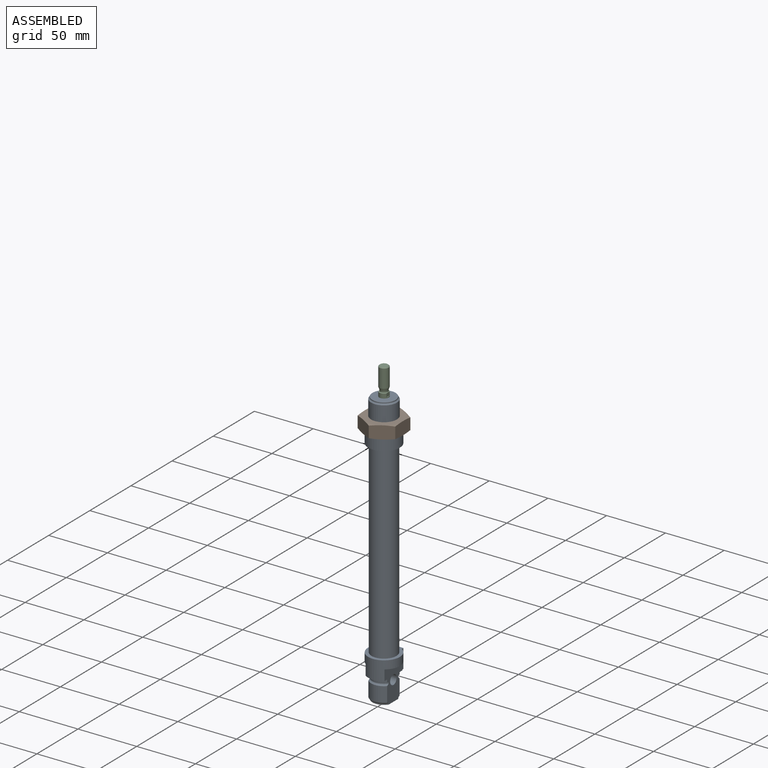
[diagram: assembled view]
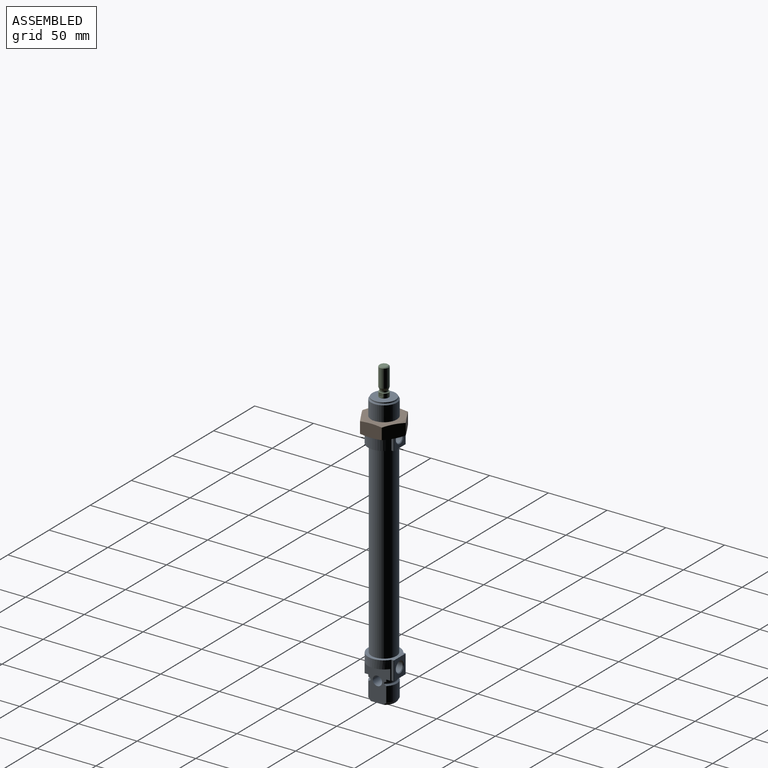
[diagram: assembled view, second angle]
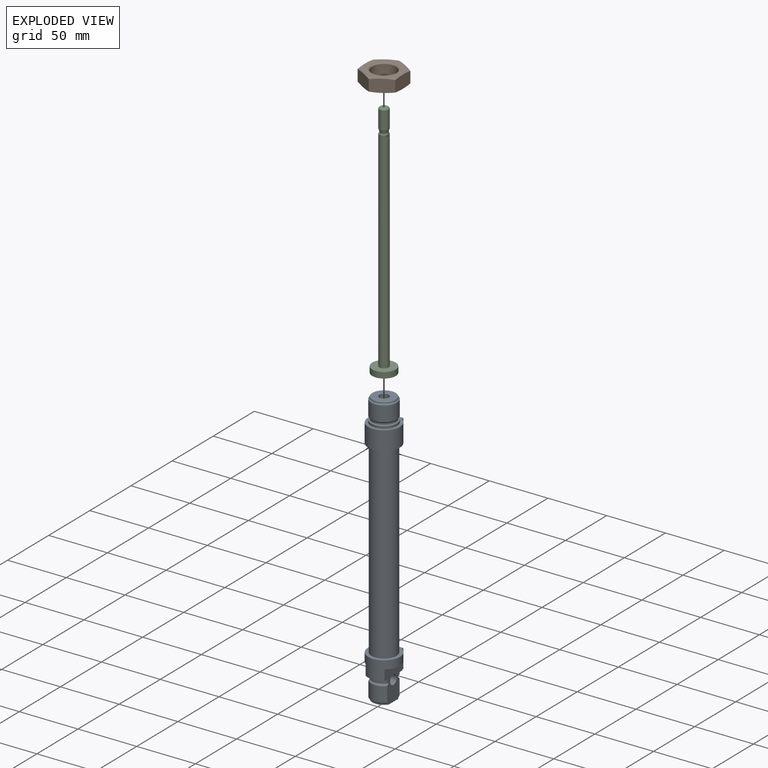
[diagram: exploded view]
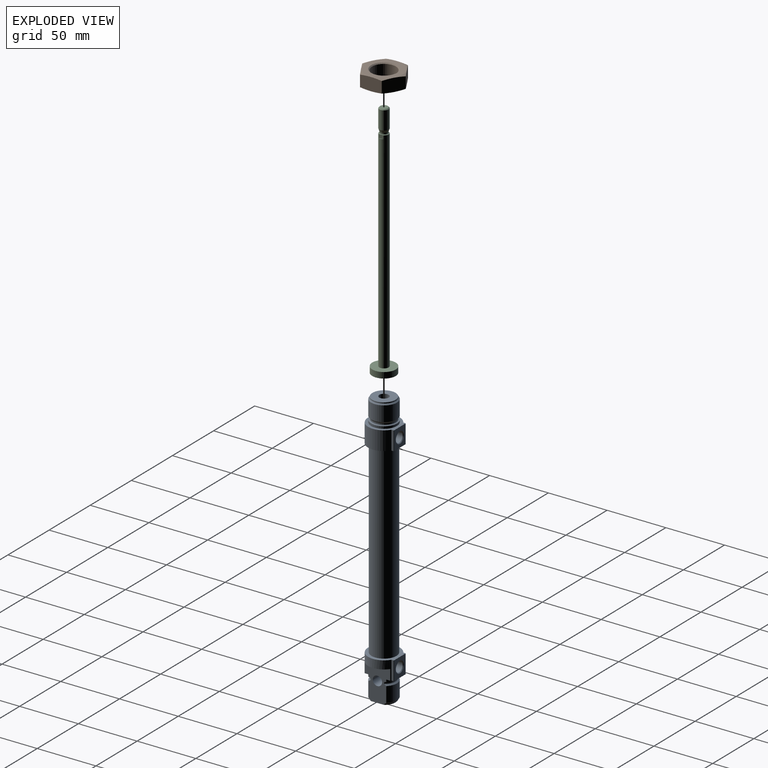
[diagram: exploded view, second angle]
ASSEMBLY  parts=3 mates=2
PART A: 70 faces, bbox 233.3x27.3x27.3 mm
  f0: plane 29.29x22.04mm, normal (0,0,1), area 434.4mm2, adj f1,f2,f3,f4,f5,f6,f9,f21
  f1: torus R=10.65mm, axis (1,0,0), area 11.6mm2, adj f0,f11,f62,f65
  f2: torus R=10.65mm, axis (1,0,0), area 22.9mm2, adj f0,f11,f59,f62
  f3: cone r=11mm half-angle=45deg, axis (-1,0,0), area 25.8mm2, adj f0,f4,f11,f66
  f4: cylinder r=11mm len=16mm, axis (-1,0,0), area 232mm2, adj f0,f3,f11,f65
  f5: cylinder r=11mm len=16mm, axis (-1,0,0), area 232mm2, adj f0,f6,f11,f68
  f6: cone r=10.08mm half-angle=45deg, axis (1,0,0), area 23.6mm2, adj f0,f5,f11,f64
  f7: plane 3.06x0.28mm, normal (0,1,0), area 0.6mm2, adj f12,f58
  f8: plane 3.06x0.28mm, normal (0,1,0), area 0.6mm2, adj f12,f58
  f9: cylinder r=4mm len=16mm, axis (0,0,1), area 402.1mm2, adj f0,f11
  f10: cone r=4.28mm half-angle=45deg, axis (0,1,0), area 23.6mm2, adj f45,f58
  f11: plane 29.29x22.04mm, normal (0,0,-1), area 434.4mm2, adj f1,f2,f3,f4,f5,f6,f9,f21
  f12: cylinder r=4mm len=50.3mm, axis (-1,0,0), area 1186.9mm2, adj f7,f8,f18,f19,f58
  f13: cone r=4.28mm half-angle=45deg, axis (0,1,0), area 23.6mm2, adj f14,f34
  f14: cylinder r=4.28mm len=15.42mm, axis (0,-1,0), area 414.9mm2, adj f13,f15
  f15: cone r=866.03mm half-angle=60deg, axis (0,1,0), area 66.5mm2, adj f14
  f16: plane 20x20mm, normal (-1,0,0), area 314.2mm2, adj f17
  f17: cylinder r=10mm len=130mm, axis (-1,0,0), area 8168.1mm2, adj f16,f18
  f18: plane 20x20mm, normal (1,0,0), area 263.9mm2, adj f12,f17
  f19: plane 19.6x19.6mm, normal (-1,0,0), area 251.5mm2, adj f12,f20
  f20: cone r=9.8mm half-angle=45deg, axis (1,0,0), area 17.6mm2, adj f19,f57
  f21: plane 19.6x16mm, normal (1,0,0), area 274mm2, adj f0,f11,f22,f69
  f22: cone r=10mm half-angle=45deg, axis (-1,0,0), area 5.3mm2, adj f0,f11,f21,f67
  f23: plane 21.75x5.5mm, normal (1,0,0), area 83.7mm2, adj f11,f30
  f24: plane 21.75x5.5mm, normal (1,0,0), area 83.7mm2, adj f0,f30
  f25: cylinder r=11mm len=16mm, axis (-1,0,0), area 35.8mm2, adj f0,f11,f28,f59
  f26: cylinder r=11mm len=16mm, axis (-1,0,0), area 35.8mm2, adj f0,f11,f27,f60
  f27: plane 16x5.95mm, normal (1,0,0), area 53.5mm2, adj f0,f11,f26,f30,f31,f32,f33,f34
  f28: plane 16x5.95mm, normal (1,0,0), area 43.7mm2, adj f0,f11,f25,f30
  f29: plane 27x27mm, normal (-1,0,0), area 226mm2, adj f30,f31,f32,f33,f34,f35,f36,f37
  f30: cylinder r=13.5mm len=27mm, axis (1,0,0), area 651.9mm2, adj f0,f11,f23,f24,f27,f28,f29,f31
  f31: cylinder r=0.3mm len=16mm, axis (1,0,0), area 4.8mm2, adj f27,f29,f30,f32
  f32: plane 16x1.55mm, normal (0,0,-1), area 24.8mm2, adj f27,f29,f31,f33
  f33: cylinder r=0.4mm len=16mm, axis (1,0,0), area 10.1mm2, adj f27,f29,f32,f34
  f34: plane 16x13.7mm, normal (0,1,0), area 144.9mm2, adj f13,f27,f29,f33,f35
  f35: cylinder r=0.4mm len=16mm, axis (1,0,0), area 10.1mm2, adj f27,f29,f34,f36
  f36: plane 16x1.55mm, normal (0,0,1), area 24.8mm2, adj f27,f29,f35,f37
  f37: cylinder r=0.3mm len=16mm, axis (1,0,0), area 4.8mm2, adj f27,f29,f30,f36
  f38: cylinder r=10.65mm len=161mm, axis (-1,0,0), area 10773.5mm2, adj f29,f39
  f39: plane 27x27mm, normal (1,0,0), area 226mm2, adj f38,f41,f42,f43,f44,f45,f46,f47
  f40: plane 27x27mm, normal (-1,0,0), area 202.2mm2, adj f41,f42,f43,f44,f45,f46,f47,f48
  f41: cylinder r=13.5mm len=27mm, axis (1,0,0), area 1107.1mm2, adj f39,f40,f42,f48
  f42: cylinder r=0.3mm len=16mm, axis (1,0,0), area 4.8mm2, adj f39,f40,f41,f43
  f43: plane 16x1.55mm, normal (0,0,-1), area 24.8mm2, adj f39,f40,f42,f44
  f44: cylinder r=0.4mm len=16mm, axis (1,0,0), area 10.1mm2, adj f39,f40,f43,f45
  f45: plane 16x13.7mm, normal (0,1,0), area 144.9mm2, adj f10,f39,f40,f44,f46
  f46: cylinder r=0.4mm len=16mm, axis (1,0,0), area 10.1mm2, adj f39,f40,f45,f47
  f47: plane 16x1.55mm, normal (0,0,1), area 24.8mm2, adj f39,f40,f46,f48
  f48: cylinder r=0.3mm len=16mm, axis (1,0,0), area 4.8mm2, adj f39,f40,f41,f47
  f49: cylinder r=11mm len=22mm, axis (-1,0,0), area 138.2mm2, adj f40,f50
  f50: plane 22x22mm, normal (-1,0,0), area 23.8mm2, adj f49,f51
  f51: torus R=10.65mm, axis (1,0,0), area 80.1mm2, adj f50,f52
  f52: cylinder r=9.85mm len=19.7mm, axis (-1,0,0), area 47.6mm2, adj f51,f53
  f53: torus R=10.65mm, axis (1,0,0), area 39.2mm2, adj f52,f54
  f54: cone r=11mm half-angle=45deg, axis (-1,0,0), area 85.8mm2, adj f53,f55
  f55: cylinder r=11mm len=22mm, axis (-1,0,0), area 895mm2, adj f54,f56
  f56: cone r=10mm half-angle=45deg, axis (1,0,0), area 93.3mm2, adj f55,f57
  f57: cylinder r=10mm len=20mm, axis (-1,0,0), area 50.3mm2, adj f20,f56
  f58: cylinder r=4.28mm len=12.92mm, axis (0,-1,0), area 288mm2, adj f7,f8,f10,f12
  f59: plane 16x3.97mm, normal (1,0,0), area 6.3mm2, adj f0,f2,f11,f25
  f60: plane 16x3.97mm, normal (1,0,0), area 6.3mm2, adj f0,f11,f26,f63
  f61: cylinder r=9.85mm len=16mm, axis (-1,0,0), area 14.4mm2, adj f0,f11,f63,f64
  f62: cylinder r=9.85mm len=16mm, axis (-1,0,0), area 14.4mm2, adj f0,f1,f2,f11
  f63: torus R=10.65mm, axis (1,0,0), area 22.9mm2, adj f0,f11,f60,f61
  f64: torus R=10.65mm, axis (1,0,0), area 11.6mm2, adj f0,f6,f11,f61
  f65: cone r=10.08mm half-angle=45deg, axis (1,0,0), area 23.6mm2, adj f0,f1,f4,f11
  f66: cylinder r=10mm len=16mm, axis (-1,0,0), area 14.8mm2, adj f0,f3,f11,f69
  f67: cylinder r=10mm len=16mm, axis (-1,0,0), area 14.8mm2, adj f0,f11,f22,f68
  f68: cone r=11mm half-angle=45deg, axis (-1,0,0), area 25.8mm2, adj f0,f5,f11,f67
  f69: cone r=10mm half-angle=45deg, axis (-1,0,0), area 5.3mm2, adj f0,f11,f21,f66
PART B: 13 faces, bbox 37x11x37 mm
  f0: plane 18.48x10.97mm, normal (-1,0,0), area 194.2mm2, adj f1,f2,f4,f8
  f1: plane 16x10.97mm, normal (-0.5,0,-0.87), area 194.2mm2, adj f0,f2,f8,f12
  f2: cone r=36.48mm half-angle=75deg, axis (0,1,0), area 90.7mm2, adj f0,f1,f3,f4,f5,f6,f12
  f3: plane 18.48x10.97mm, normal (1,0,0), area 194.3mm2, adj f2,f6,f8,f12
  f4: plane 16x10.97mm, normal (-0.5,0,0.87), area 194.2mm2, adj f0,f2,f6,f8
  f5: plane 31.9x31.9mm, normal (0,-1,0), area 419.1mm2, adj f2,f9
  f6: plane 16x10.97mm, normal (0.5,0,0.87), area 194.3mm2, adj f2,f3,f4,f8
  f7: plane 31.9x31.9mm, normal (0,1,0), area 419.1mm2, adj f8,f11
  f8: cone r=15.95mm half-angle=75deg, axis (0,-1,0), area 90.7mm2, adj f0,f1,f3,f4,f6,f7,f12
  f9: cone r=10.19mm half-angle=45deg, axis (0,-1,0), area 76.4mm2, adj f5,f10
  f10: cylinder r=10.19mm len=20.38mm, axis (0,1,0), area 600.2mm2, adj f9,f11
  f11: cone r=11mm half-angle=45deg, axis (0,1,0), area 76.4mm2, adj f7,f10
  f12: plane 16x10.97mm, normal (0.5,0,-0.87), area 194.2mm2, adj f1,f2,f3,f8
PART C: 17 faces, bbox 20.2x20.2x204.5 mm
  f0: plane 3.87x3.08mm, normal (1,0,0), area 11.7mm2, adj f3,f4,f5,f15,f16
  f1: plane 4.06x3.27mm, normal (-1,0,0), area 11.8mm2, adj f2,f3,f4,f5,f15
  f2: plane 3.87x0.5mm, normal (0,0,1), area 1.3mm2, adj f1,f15
  f3: plane 7x2.52mm, normal (0,0,1), area 1.7mm2, adj f0,f1,f5,f15
  f4: plane 7x2.52mm, normal (0,0,1), area 1.7mm2, adj f0,f1,f5,f15
  f5: torus R=3.8mm, axis (0,0,-1), area 19.2mm2, adj f0,f1,f3,f4,f6
  f6: cylinder r=3.2mm len=6.4mm, axis (0,0,1), area 16mm2, adj f5,f7
  f7: torus R=3.8mm, axis (0,0,-1), area 4.2mm2, adj f6,f8
  f8: cone r=4mm half-angle=20deg, axis (0,0,1), area 50.8mm2, adj f7,f9
  f9: cylinder r=4mm len=15.54mm, axis (0,0,1), area 390.4mm2, adj f8,f10
  f10: cone r=3.23mm half-angle=45deg, axis (0,0,-1), area 24.6mm2, adj f9,f11
  f11: plane 6.47x6.47mm, normal (0,0,1), area 32.8mm2, adj f10
  f12: plane 20x20mm, normal (0,0,-1), area 314.2mm2, adj f13
  f13: cylinder r=10mm len=20mm, axis (0,0,1), area 314.2mm2, adj f12,f14
  f14: plane 20x20mm, normal (0,0,1), area 263.9mm2, adj f13,f15
  f15: cylinder r=4mm len=179.3mm, axis (0,0,1), area 4482mm2, adj f0,f1,f2,f3,f4,f14,f16
  f16: plane 3.87x0.5mm, normal (0,0,1), area 1.3mm2, adj f0,f15
PLACE A rot(axis=(0,1,0),90deg) t=(1.25,6.09,72.39)mm
PLACE B rot(axis=(0,0.71,0.71),180deg) t=(1.25,6.09,57.44)mm
PLACE C rot(axis=(0,0,1),180deg) t=(1.25,6.09,72.2)mm
MATE fastened B.f2 <-> A.f1  axis (0,0,1) through (1.25,6.09,57.44)mm
MATE slider A.f1 <-> C.f5  axis (0,0,1) through (1.25,6.09,-44.11)mm
